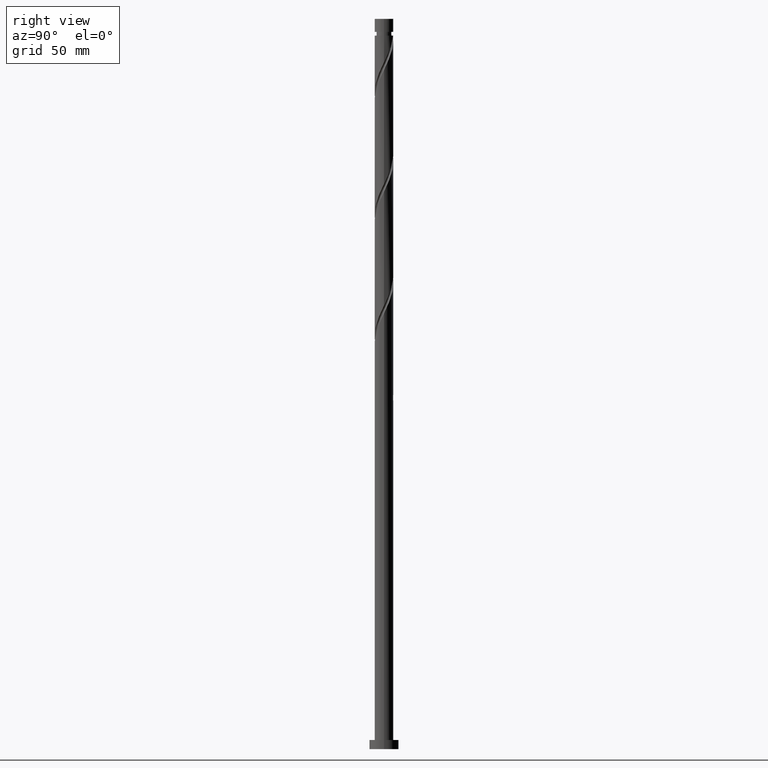
[diagram: clean part render]
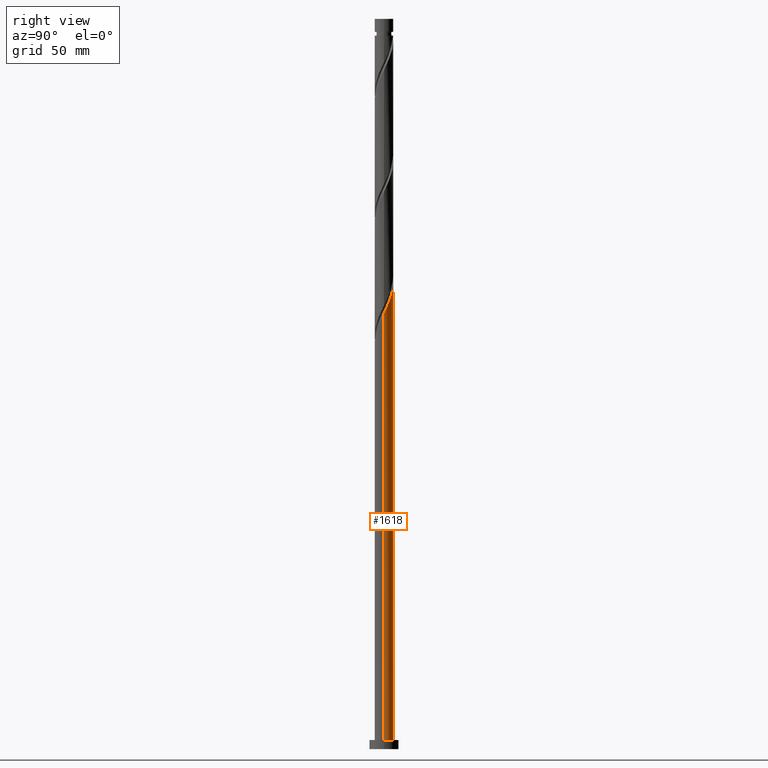
[diagram: same view with one face highlighted and labeled with its STEP entity id]
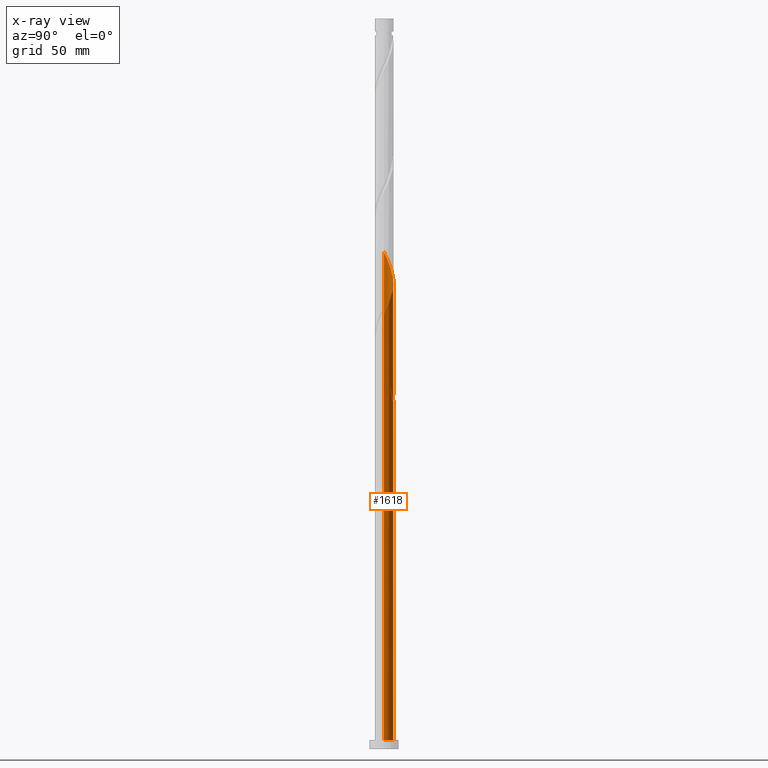
[diagram: x-ray of the same camera — body ghosted, the highlighted face saturated]
A machine part, right view. The second image highlights one B-rep face of the part: STEP entity #1618.
The next image is the same camera in x-ray: the body ghosted, the highlighted face saturated — about 0% of this face is hidden behind the body in this view.
In plain terms, the highlighted cylindrical surface (edge-blend (fillet) strip) has radius 5.1 mm, axis along (-0, -0, -1).
Its self-contained STEP definition (entity closure, byte-faithful):
#11 = CARTESIAN_POINT ( 'NONE',  ( 5.076705030977439748, 0.4868942682435418723, 239.7353195705191808 ) ) ;
#27 = CARTESIAN_POINT ( 'NONE',  ( 5.100000000000006750, 3.213909315443002512E-15, 238.7209874381087502 ) ) ;
#36 = CARTESIAN_POINT ( 'NONE',  ( -0.4895762179909007306, 5.104668941549574512, 256.4019862371857243 ) ) ;
#57 = CARTESIAN_POINT ( 'NONE',  ( -4.439763080642544324, 2.509682009291896332, 204.1797640149635242 ) ) ;
#84 = DIRECTION ( 'NONE',  ( 1.000000000000000000, 0.000000000000000000, 0.000000000000000000 ) ) ;
#96 = AXIS2_PLACEMENT_3D ( 'NONE', #1177, #1001, #1949 ) ;
#99 = DIRECTION ( 'NONE',  ( -0.000000000000000000, -0.000000000000000000, -1.000000000000000000 ) ) ;
#105 = VERTEX_POINT ( 'NONE', #215 ) ;
#109 = LINE ( 'NONE', #1308, #1781 ) ;
#110 = CARTESIAN_POINT ( 'NONE',  ( 5.100000000000006750, 3.213909315443002512E-15, 238.7209874381087786 ) ) ;
#136 = CARTESIAN_POINT ( 'NONE',  ( 0.000000000000000000, 0.000000000000000000, 5.000000000000000000 ) ) ;
#156 = CARTESIAN_POINT ( 'NONE',  ( -2.523506039414606494, 4.464218536886509270, 260.8464306816302951 ) ) ;
#171 = ORIENTED_EDGE ( 'NONE', *, *, #379, .F. ) ;
#194 = CARTESIAN_POINT ( 'NONE',  ( 4.864535835123834140, 1.531760787067008689, 241.9575417927413810 ) ) ;
#213 = CARTESIAN_POINT ( 'NONE',  ( -3.465917878084596282, 3.779516257197026441, 200.8464306816302951 ) ) ;
#215 = CARTESIAN_POINT ( 'NONE',  ( 5.099999999999999645, 6.245698675651499853E-16, 5.000000000000000000 ) ) ;
#242 = VERTEX_POINT ( 'NONE', #684 ) ;
#265 = ORIENTED_EDGE ( 'NONE', *, *, #1210, .T. ) ;
#266 = CARTESIAN_POINT ( 'NONE',  ( 0.000000000000000000, 0.000000000000000000, 400.0000000000000000 ) ) ;
#286 = CIRCLE ( 'NONE', #1461, 5.099999999999999645 ) ;
#307 = CARTESIAN_POINT ( 'NONE',  ( -4.393329915788834583, 2.590106609974759611, 266.4019862371857243 ) ) ;
#310 = ORIENTED_EDGE ( 'NONE', *, *, #572, .F. ) ;
#315 = CARTESIAN_POINT ( 'NONE',  ( -5.100000000000006750, 0.2905660609768005997, 271.4487294620575426 ) ) ;
#339 = CARTESIAN_POINT ( 'NONE',  ( 3.035145759683209654, 4.098522931188393059, 248.6242084594080382 ) ) ;
#364 = CARTESIAN_POINT ( 'NONE',  ( -5.100000000000000533, 0.2440043963624132228, 209.1299920662543741 ) ) ;
#373 = CARTESIAN_POINT ( 'NONE',  ( -3.035145759683201661, 4.098522931188388618, 199.7353195705190956 ) ) ;
#375 = CARTESIAN_POINT ( 'NONE',  ( -1.014887185848755369, 4.998000000000005549, 190.8464306816302667 ) ) ;
#379 = EDGE_CURVE ( 'NONE', #1642, #1306, #1071, .T. ) ;
#400 = EDGE_CURVE ( 'NONE', #1317, #242, #1135, .T. ) ;
#406 = ORIENTED_EDGE ( 'NONE', *, *, #400, .F. ) ;
#408 = FACE_OUTER_BOUND ( 'NONE', #1240, .T. ) ;
#420 = CARTESIAN_POINT ( 'NONE',  ( -5.100000000000006750, -3.349939895771055228E-14, 205.3876541047755495 ) ) ;
#423 = DIRECTION ( 'NONE',  ( 0.000000000000000000, 0.000000000000000000, 1.000000000000000000 ) ) ;
#448 = VERTEX_POINT ( 'NONE', #1261 ) ;
#466 = CARTESIAN_POINT ( 'NONE',  ( -1.540198153706608508, 4.891331058450437475, 258.6242084594080097 ) ) ;
#475 = CARTESIAN_POINT ( 'NONE',  ( 3.820951375190253962, 3.377918084920322972, 246.4019862371858380 ) ) ;
#486 = CARTESIAN_POINT ( 'NONE',  ( -4.835838561039007999, 1.620081915079681245, 268.6242084594080666 ) ) ;
#506 = CARTESIAN_POINT ( 'NONE',  ( -1.014887185848755369, 4.998000000000005549, 257.5130973482969239 ) ) ;
#556 = ORIENTED_EDGE ( 'NONE', *, *, #1989, .T. ) ;
#567 = DIRECTION ( 'NONE',  ( -0.000000000000000000, -0.000000000000000000, -1.000000000000000000 ) ) ;
#572 = EDGE_CURVE ( 'NONE', #1306, #903, #856, .T. ) ;
#615 = CARTESIAN_POINT ( 'NONE',  ( -3.396524602074724175, 3.841998243563401250, 263.0686529038525237 ) ) ;
#620 = DIRECTION ( 'NONE',  ( -1.000000000000000000, 0.000000000000000000, 0.000000000000000000 ) ) ;
#635 = CARTESIAN_POINT ( 'NONE',  ( -5.006116031791211007, 1.111814801253407703, 269.7353195705190956 ) ) ;
#641 = VECTOR ( 'NONE', #99, 1000.000000000000000 ) ;
#661 = CARTESIAN_POINT ( 'NONE',  ( 5.025530381258461077, 1.020477468193841331, 240.8464306816303235 ) ) ;
#670 = CARTESIAN_POINT ( 'NONE',  ( -0.04643316485371615926, 5.099788619266650613, 193.0686529038524952 ) ) ;
#684 = CARTESIAN_POINT ( 'NONE',  ( -5.100000000000006750, -5.007719165922817574E-15, 272.0543207714421214 ) ) ;
#688 = CARTESIAN_POINT ( 'NONE',  ( -3.820951375190243748, 3.377918084920320307, 201.9575417927413241 ) ) ;
#709 = CARTESIAN_POINT ( 'NONE',  ( -5.076705030977431754, 0.4868942682435466462, 208.6242084594079813 ) ) ;
#764 = EDGE_CURVE ( 'NONE', #1317, #105, #883, .T. ) ;
#766 =( BOUNDED_CURVE ( )  B_SPLINE_CURVE ( 2, ( #1942, #364, #709, #1768, #1171, #1797, #57, #1604, #688, #213, #373, #995, #824, #1452, #1621, #1309, #670, #1818, #1182 ),
 .UNSPECIFIED., .F., .T. ) 
 B_SPLINE_CURVE_WITH_KNOTS ( ( 3, 2, 2, 2, 2, 2, 2, 2, 2, 3 ),
 ( 0.9295286012773112949, 0.9333333333333333481, 0.9416666666666666519, 0.9499999999999999556, 0.9583333333333333703, 0.9666666666666666741, 0.9749999999999999778, 0.9833333333333332815, 0.9916666666666666963, 1.000000000000000000 ),
 .UNSPECIFIED. ) 
 CURVE ( )  GEOMETRIC_REPRESENTATION_ITEM ( )  RATIONAL_B_SPLINE_CURVE ( ( 0.9066196499552257038, 0.9068171577856383170, 0.9090909090909373713, 0.9041108139711856451, 0.9090909090909373713, 0.9041108139711856451, 0.9090909090909373713, 0.9041108139711856451, 0.9090909090909373713, 0.9041108139711856451, 0.9090909090909373713, 0.9041108139711856451, 0.9090909090909373713, 0.9041108139711856451, 0.9090909090909373713, 0.9041108139711856451, 0.9090909090909373713, 0.9041108139711856451, 0.9090909090909373713 ) ) 
 REPRESENTATION_ITEM ( '' )  );
#775 = CARTESIAN_POINT ( 'NONE',  ( 0.04643316485371995483, 5.099788619266659495, 255.2908751260746669 ) ) ;
#785 = CARTESIAN_POINT ( 'NONE',  ( 2.604373641281815477, 4.417529605179756125, 249.7353195705191524 ) ) ;
#795 = CARTESIAN_POINT ( 'NONE',  ( -5.100000000000006750, -3.349939895771055228E-14, 205.3876541047755495 ) ) ;
#818 = CARTESIAN_POINT ( 'NONE',  ( 4.439763080642553206, 2.509682009291898996, 244.1797640149636663 ) ) ;
#820 = CARTESIAN_POINT ( 'NONE',  ( -2.523506039414606494, 4.464218536886509270, 194.1797640149635527 ) ) ;
#824 = CARTESIAN_POINT ( 'NONE',  ( -2.116689710232770860, 4.640002658468493024, 197.5130973482969523 ) ) ;
#856 = LINE ( 'NONE', #1778, #1530 ) ;
#883 = LINE ( 'NONE', #1683, #641 ) ;
#903 = VERTEX_POINT ( 'NONE', #1723 ) ;
#927 = CARTESIAN_POINT ( 'NONE',  ( -1.014887185848755369, 4.998000000000005549, 190.8464306816302667 ) ) ;
#931 = CARTESIAN_POINT ( 'NONE',  ( -2.031852096560607723, 4.677774797668473816, 259.7353195705191524 ) ) ;
#941 = CARTESIAN_POINT ( 'NONE',  ( -5.100000000000006750, -5.007719165922817574E-15, 272.0543207714421214 ) ) ;
#962 = CARTESIAN_POINT ( 'NONE',  ( -4.393329915788834583, 2.590106609974759611, 199.7353195705191240 ) ) ;
#981 = CARTESIAN_POINT ( 'NONE',  ( -3.396524602074724175, 3.841998243563401250, 196.4019862371858380 ) ) ;
#995 = CARTESIAN_POINT ( 'NONE',  ( -2.604373641281807039, 4.417529605179753460, 198.6242084594080666 ) ) ;
#999 = CARTESIAN_POINT ( 'NONE',  ( -2.031852096560607723, 4.677774797668473816, 193.0686529038524952 ) ) ;
#1001 = DIRECTION ( 'NONE',  ( -3.021066579430958153E-30, -1.360567432138672840E-14, -1.000000000000000000 ) ) ;
#1071 =( BOUNDED_CURVE ( )  B_SPLINE_CURVE ( 2, ( #375, #1617, #999, #820, #1463, #981, #1304, #1285, #962, #1598, #1861, #1251, #1398, #1101, #795 ),
 .UNSPECIFIED., .F., .T. ) 
 B_SPLINE_CURVE_WITH_KNOTS ( ( 3, 2, 2, 2, 2, 2, 2, 3 ),
 ( 0.000000000000000000, 0.008333333333333303727, 0.01666666666666671848, 0.02500000000000002220, 0.03333333333333332593, 0.04166666666666662966, 0.05000000000000004441, 0.05452860127731191942 ),
 .UNSPECIFIED. ) 
 CURVE ( )  GEOMETRIC_REPRESENTATION_ITEM ( )  RATIONAL_B_SPLINE_CURVE ( ( 0.9090909090909433665, 0.9041108139711916403, 0.9090909090909433665, 0.9041108139711916403, 0.9090909090909433665, 0.9041108139711916403, 0.9090909090909433665, 0.9041108139711916403, 0.9090909090909433665, 0.9041108139711916403, 0.9090909090909433665, 0.9041108139711916403, 0.9090909090909433665, 0.9063845652764902505, 0.9066196499552316990 ) ) 
 REPRESENTATION_ITEM ( '' )  );
#1084 = CARTESIAN_POINT ( 'NONE',  ( -5.066997856243814269, 0.5792518664800785366, 270.8464306816302951 ) ) ;
#1101 = CARTESIAN_POINT ( 'NONE',  ( -5.100000000000010303, 0.2905660609767784508, 204.7820627953909707 ) ) ;
#1121 = CARTESIAN_POINT ( 'NONE',  ( -2.960015320744665335, 4.153108390224957702, 261.9575417927413810 ) ) ;
#1135 =( BOUNDED_CURVE ( )  B_SPLINE_CURVE ( 2, ( #27, #1911, #11, #661, #194, #1418, #818, #1283, #475, #1441, #339, #785, #1729, #1272, #1555, #2006, #775, #36, #506, #466, #931, #156, #1121, #615, #1237, #1717, #307, #1574, #486, #635, #1084, #315, #941 ),
 .UNSPECIFIED., .F., .T. ) 
 B_SPLINE_CURVE_WITH_KNOTS ( ( 3, 2, 2, 2, 2, 2, 2, 2, 2, 2, 2, 2, 2, 2, 2, 2, 3 ),
 ( 0.1795286012773116002, 0.1833333333333333481, 0.1916666666666666519, 0.1999999999999999556, 0.2083333333333333703, 0.2166666666666666741, 0.2249999999999999778, 0.2333333333333332815, 0.2416666666666666963, 0.2500000000000000000, 0.2583333333333333037, 0.2666666666666667185, 0.2750000000000000222, 0.2833333333333333259, 0.2916666666666666297, 0.3000000000000000444, 0.3045286012773115725 ),
 .UNSPECIFIED. ) 
 CURVE ( )  GEOMETRIC_REPRESENTATION_ITEM ( )  RATIONAL_B_SPLINE_CURVE ( ( 0.9066196499552316990, 0.9068171577856445342, 0.9090909090909433665, 0.9041108139711916403, 0.9090909090909433665, 0.9041108139711916403, 0.9090909090909433665, 0.9041108139711916403, 0.9090909090909433665, 0.9041108139711916403, 0.9090909090909433665, 0.9041108139711916403, 0.9090909090909433665, 0.9041108139711916403, 0.9090909090909433665, 0.9041108139711916403, 0.9090909090909433665, 0.9041108139711916403, 0.9090909090909433665, 0.9041108139711916403, 0.9090909090909433665, 0.9041108139711916403, 0.9090909090909433665, 0.9041108139711916403, 0.9090909090909433665, 0.9041108139711916403, 0.9090909090909433665, 0.9041108139711916403, 0.9090909090909433665, 0.9041108139711916403, 0.9090909090909433665, 0.9063845652764904726, 0.9066196499552316990 ) ) 
 REPRESENTATION_ITEM ( '' )  );
#1152 = DIRECTION ( 'NONE',  ( -0.000000000000000000, -0.000000000000000000, -1.000000000000000000 ) ) ;
#1171 = CARTESIAN_POINT ( 'NONE',  ( -4.864535835123824370, 1.531760787067010465, 206.4019862371858380 ) ) ;
#1177 = CARTESIAN_POINT ( 'NONE',  ( 0.000000000000000000, 0.000000000000000000, 190.8464306816303235 ) ) ;
#1182 = CARTESIAN_POINT ( 'NONE',  ( 1.014887185848757367, 4.997999999999999332, 190.8464306816302383 ) ) ;
#1210 = EDGE_CURVE ( 'NONE', #105, #903, #286, .T. ) ;
#1237 = CARTESIAN_POINT ( 'NONE',  ( -3.758811671682795286, 3.446931217303482953, 264.1797640149635527 ) ) ;
#1240 = EDGE_LOOP ( 'NONE', ( #406, #1957, #265, #310, #171, #556, #1254, #1466 ) ) ;
#1251 = CARTESIAN_POINT ( 'NONE',  ( -5.006116031791211007, 1.111814801253407703, 203.0686529038524952 ) ) ;
#1254 = ORIENTED_EDGE ( 'NONE', *, *, #1276, .F. ) ;
#1261 = CARTESIAN_POINT ( 'NONE',  ( 1.014887185848757367, 4.997999999999999332, 190.8464306816302667 ) ) ;
#1272 = CARTESIAN_POINT ( 'NONE',  ( 1.629005779183738900, 4.862475711757243246, 251.9575417927413241 ) ) ;
#1276 = EDGE_CURVE ( 'NONE', #1926, #448, #766, .T. ) ;
#1283 = CARTESIAN_POINT ( 'NONE',  ( 4.175984872295901873, 2.976319912643616394, 245.2908751260746953 ) ) ;
#1285 = CARTESIAN_POINT ( 'NONE',  ( -4.121098741290862399, 3.051864191043564656, 198.6242084594080382 ) ) ;
#1304 = CARTESIAN_POINT ( 'NONE',  ( -3.758811671682795286, 3.446931217303482953, 197.5130973482969523 ) ) ;
#1306 = VERTEX_POINT ( 'NONE', #420 ) ;
#1308 = CARTESIAN_POINT ( 'NONE',  ( -5.099999999999999645, 0.000000000000000000, 400.0000000000000000 ) ) ;
#1309 = CARTESIAN_POINT ( 'NONE',  ( -0.5824425476983379202, 5.094908296983734708, 194.1797640149635527 ) ) ;
#1310 = DIRECTION ( 'NONE',  ( -0.000000000000000000, -0.000000000000000000, -1.000000000000000000 ) ) ;
#1317 = VERTEX_POINT ( 'NONE', #110 ) ;
#1398 = CARTESIAN_POINT ( 'NONE',  ( -5.066997856243814269, 0.5792518664800785366, 204.1797640149636379 ) ) ;
#1418 = CARTESIAN_POINT ( 'NONE',  ( 4.703541288989204538, 2.043044105940176713, 243.0686529038524100 ) ) ;
#1432 = EDGE_CURVE ( 'NONE', #242, #1926, #109, .T. ) ;
#1441 = CARTESIAN_POINT ( 'NONE',  ( 3.465917878084602055, 3.779516257197030438, 247.5130973482968670 ) ) ;
#1452 = CARTESIAN_POINT ( 'NONE',  ( -1.629005779183733349, 4.862475711757237917, 196.4019862371858096 ) ) ;
#1461 = AXIS2_PLACEMENT_3D ( 'NONE', #136, #423, #84 ) ;
#1463 = CARTESIAN_POINT ( 'NONE',  ( -2.960015320744665335, 4.153108390224957702, 195.2908751260746953 ) ) ;
#1466 = ORIENTED_EDGE ( 'NONE', *, *, #1432, .F. ) ;
#1530 = VECTOR ( 'NONE', #1310, 1000.000000000000000 ) ;
#1555 = CARTESIAN_POINT ( 'NONE',  ( 1.105724163441041963, 4.978692004370492086, 253.0686529038524952 ) ) ;
#1574 = CARTESIAN_POINT ( 'NONE',  ( -4.665561090286806767, 2.128349028905955009, 267.5130973482968670 ) ) ;
#1581 = CARTESIAN_POINT ( 'NONE',  ( -5.099999999999997868, -2.107726574313796898E-14, 209.6385405918184404 ) ) ;
#1598 = CARTESIAN_POINT ( 'NONE',  ( -4.665561090286806767, 2.128349028905955009, 200.8464306816302667 ) ) ;
#1604 = CARTESIAN_POINT ( 'NONE',  ( -4.175984872295893879, 2.976319912643616394, 203.0686529038524384 ) ) ;
#1617 = CARTESIAN_POINT ( 'NONE',  ( -1.540198153706608508, 4.891331058450437475, 191.9575417927413525 ) ) ;
#1618 = ADVANCED_FACE ( 'NONE', ( #408 ), #1658, .T. ) ;
#1621 = CARTESIAN_POINT ( 'NONE',  ( -1.105724163441035302, 4.978692004370486757, 195.2908751260746953 ) ) ;
#1642 = VERTEX_POINT ( 'NONE', #927 ) ;
#1658 = CYLINDRICAL_SURFACE ( 'NONE', #1712, 5.099999999999999645 ) ;
#1683 = CARTESIAN_POINT ( 'NONE',  ( 5.099999999999999645, 6.245698675651499853E-16, 400.0000000000000000 ) ) ;
#1712 = AXIS2_PLACEMENT_3D ( 'NONE', #266, #567, #620 ) ;
#1717 = CARTESIAN_POINT ( 'NONE',  ( -4.121098741290862399, 3.051864191043564656, 265.2908751260746953 ) ) ;
#1723 = CARTESIAN_POINT ( 'NONE',  ( -5.099999999999999645, 0.000000000000000000, 5.000000000000000000 ) ) ;
#1729 = CARTESIAN_POINT ( 'NONE',  ( 2.116689710232775745, 4.640002658468502794, 250.8464306816302667 ) ) ;
#1768 = CARTESIAN_POINT ( 'NONE',  ( -5.025530381258453971, 1.020477468193841331, 207.5130973482969807 ) ) ;
#1778 = CARTESIAN_POINT ( 'NONE',  ( -5.099999999999999645, 0.000000000000000000, 400.0000000000000000 ) ) ;
#1781 = VECTOR ( 'NONE', #1152, 1000.000000000000000 ) ;
#1783 = CIRCLE ( 'NONE', #96, 5.099999999999999645 ) ;
#1797 = CARTESIAN_POINT ( 'NONE',  ( -4.703541288989194769, 2.043044105940178934, 205.2908751260746385 ) ) ;
#1818 = CARTESIAN_POINT ( 'NONE',  ( 0.4895762179909050604, 5.104668941549566519, 191.9575417927413525 ) ) ;
#1861 = CARTESIAN_POINT ( 'NONE',  ( -4.835838561039007999, 1.620081915079681245, 201.9575417927413810 ) ) ;
#1911 = CARTESIAN_POINT ( 'NONE',  ( 5.100000000000006750, 0.2440043963624280998, 239.2295359636728449 ) ) ;
#1926 = VERTEX_POINT ( 'NONE', #1581 ) ;
#1942 = CARTESIAN_POINT ( 'NONE',  ( -5.099999999999997868, -2.107726574313796898E-14, 209.6385405918184404 ) ) ;
#1949 = DIRECTION ( 'NONE',  ( 0.000000000000000000, 1.000000000000000000, -1.632680918566406714E-14 ) ) ;
#1957 = ORIENTED_EDGE ( 'NONE', *, *, #764, .T. ) ;
#1989 = EDGE_CURVE ( 'NONE', #1642, #448, #1783, .T. ) ;
#2006 = CARTESIAN_POINT ( 'NONE',  ( 0.5824425476983405847, 5.094908296983741813, 254.1797640149635527 ) ) ;